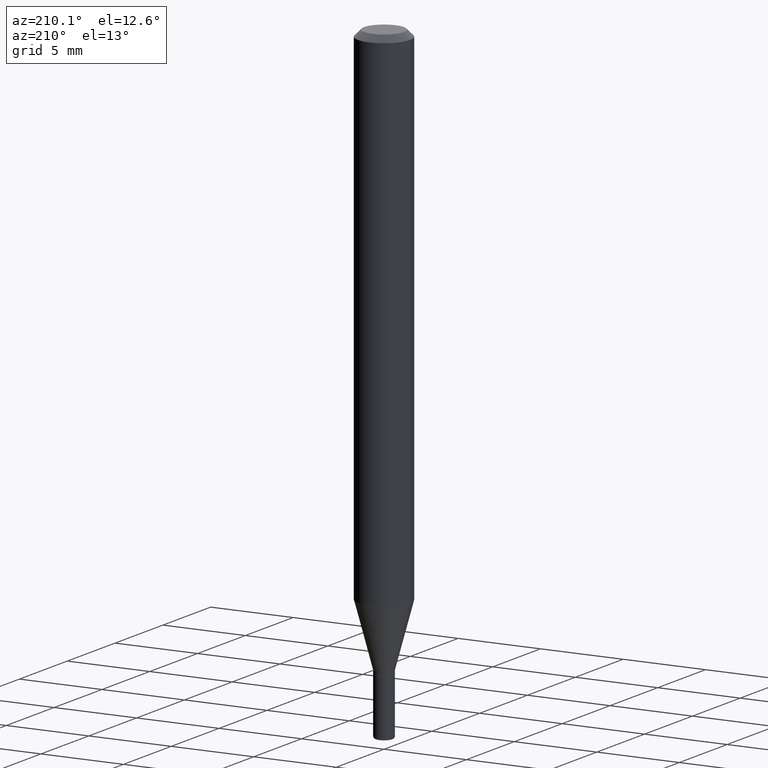
[diagram: clean part render]
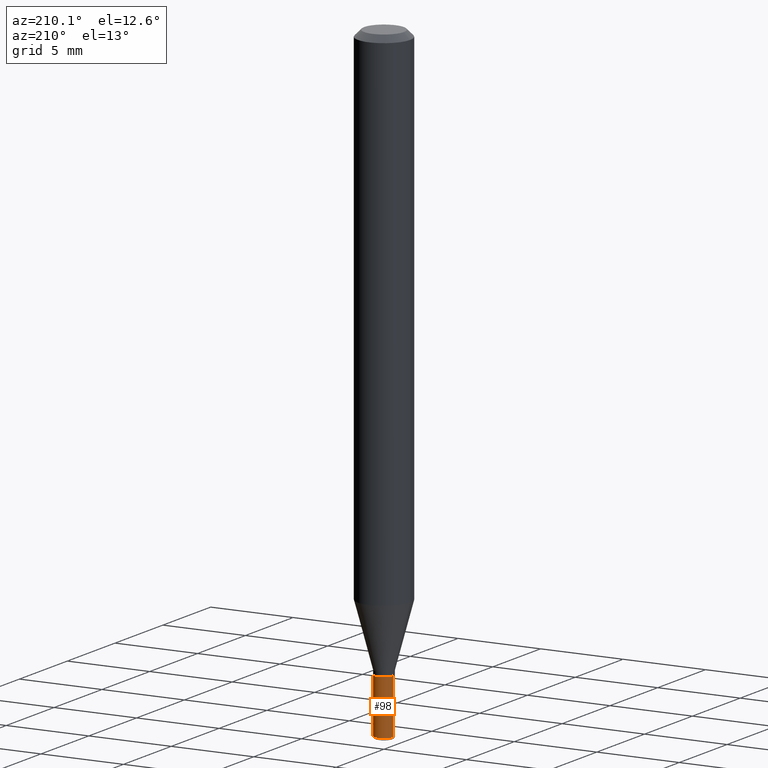
[diagram: same view with one face highlighted and labeled with its STEP entity id]
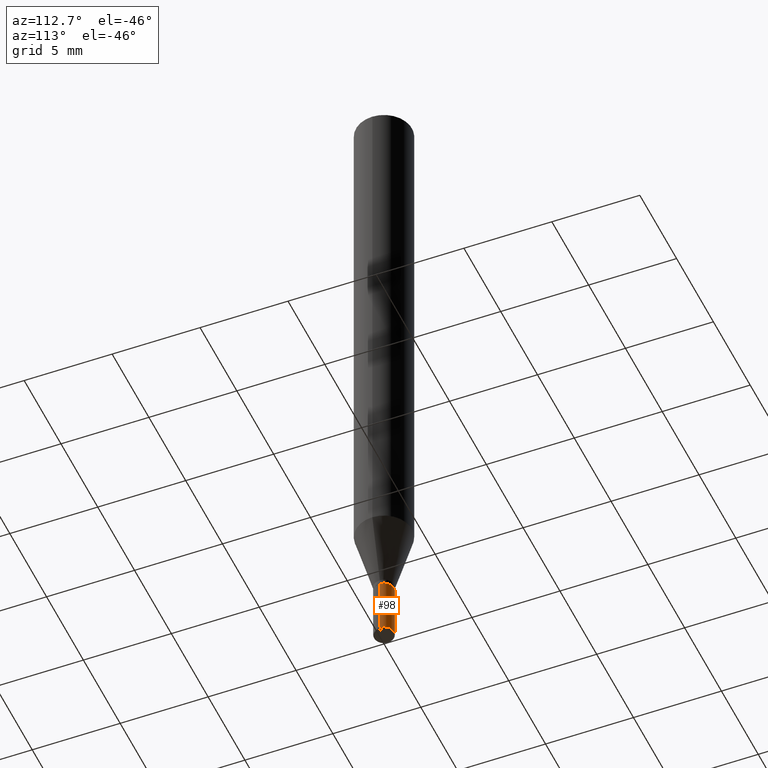
[diagram: same view with one face highlighted and labeled with its STEP entity id]
A machine part, auxiliary view. The second image highlights one B-rep face of the part: STEP entity #98.
A second angle (auxiliary view) of the same face is appended — the face is thin or edge-on in the first view.
In plain terms, the highlighted cylindrical surface (edge-blend (fillet) strip) has radius 0.5715 mm, axis along (-0, 0, 1).
Its self-contained STEP definition (entity closure, byte-faithful):
#10 = EDGE_CURVE ( 'NONE', #320, #467, #14, .T. ) ;
#14 = LINE ( 'NONE', #494, #330 ) ;
#18 = FACE_OUTER_BOUND ( 'NONE', #285, .T. ) ;
#68 = CARTESIAN_POINT ( 'NONE',  ( 3.338064920442711836E-29, -4.765872027520893280E-15, -1.364999999999999991 ) ) ;
#78 = CARTESIAN_POINT ( 'NONE',  ( 3.655975865246779683E-29, -5.219764601570503930E-15, -1.495000000000000329 ) ) ;
#81 = VERTEX_POINT ( 'NONE', #492 ) ;
#82 = CARTESIAN_POINT ( 'NONE',  ( 0.02249999999999999917, -4.922988687768834913E-15, -1.364999999999999991 ) ) ;
#98 = ADVANCED_FACE ( 'NONE', ( #18 ), #327, .T. ) ;
#115 = CIRCLE ( 'NONE', #423, 0.02250000000000017958 ) ;
#118 = EDGE_CURVE ( 'NONE', #81, #200, #505, .T. ) ;
#130 = CARTESIAN_POINT ( 'NONE',  ( 0.000000000000000000, 0.000000000000000000, 0.000000000000000000 ) ) ;
#141 = DIRECTION ( 'NONE',  ( -2.445468806185136877E-29, 3.491481338843145188E-15, 1.000000000000000000 ) ) ;
#165 = AXIS2_PLACEMENT_3D ( 'NONE', #130, #296, #454 ) ;
#173 = CIRCLE ( 'NONE', #372, 0.02249999999999999917 ) ;
#178 = DIRECTION ( 'NONE',  ( 1.000000000000000000, -6.982962677686269077E-15, 0.000000000000000000 ) ) ;
#185 = CARTESIAN_POINT ( 'NONE',  ( -0.02250000000000008937, 1.598721155460231769E-16, -1.106760395307358334E-30 ) ) ;
#193 = DIRECTION ( 'NONE',  ( 1.000000000000000000, -6.982962677686255667E-15, 0.000000000000000000 ) ) ;
#200 = VERTEX_POINT ( 'NONE', #260 ) ;
#225 = ORIENTED_EDGE ( 'NONE', *, *, #118, .T. ) ;
#260 = CARTESIAN_POINT ( 'NONE',  ( -0.02249999999999999917, -4.832946198999675921E-15, -1.364999999999999991 ) ) ;
#261 = DIRECTION ( 'NONE',  ( -2.445468806185136597E-29, 3.491481338843145583E-15, 1.000000000000000000 ) ) ;
#268 = CARTESIAN_POINT ( 'NONE',  ( 0.02250000000000017958, -5.376881261818446351E-15, -1.495000000000000329 ) ) ;
#285 = EDGE_LOOP ( 'NONE', ( #362, #225, #501, #426 ) ) ;
#286 = DIRECTION ( 'NONE',  ( -2.445468806185136877E-29, 3.491481338843145188E-15, 1.000000000000000000 ) ) ;
#287 = EDGE_CURVE ( 'NONE', #467, #200, #173, .T. ) ;
#296 = DIRECTION ( 'NONE',  ( -2.445468806185136597E-29, 3.491481338843145583E-15, 1.000000000000000000 ) ) ;
#320 = VERTEX_POINT ( 'NONE', #268 ) ;
#327 = CYLINDRICAL_SURFACE ( 'NONE', #165, 0.02250000000000008937 ) ;
#330 = VECTOR ( 'NONE', #286, 39.37007874015748143 ) ;
#362 = ORIENTED_EDGE ( 'NONE', *, *, #455, .T. ) ;
#372 = AXIS2_PLACEMENT_3D ( 'NONE', #68, #261, #178 ) ;
#390 = DIRECTION ( 'NONE',  ( -2.445468806185136597E-29, 3.491481338843145583E-15, 1.000000000000000000 ) ) ;
#423 = AXIS2_PLACEMENT_3D ( 'NONE', #78, #390, #193 ) ;
#426 = ORIENTED_EDGE ( 'NONE', *, *, #10, .F. ) ;
#454 = DIRECTION ( 'NONE',  ( 1.000000000000000000, -6.982962677686265922E-15, 4.876176775795936353E-29 ) ) ;
#455 = EDGE_CURVE ( 'NONE', #320, #81, #115, .T. ) ;
#467 = VERTEX_POINT ( 'NONE', #82 ) ;
#489 = VECTOR ( 'NONE', #141, 39.37007874015748143 ) ;
#492 = CARTESIAN_POINT ( 'NONE',  ( -0.02250000000000017958, -4.832946198999673555E-15, -1.495000000000000329 ) ) ;
#494 = CARTESIAN_POINT ( 'NONE',  ( 0.02250000000000008937, -1.571166602479416074E-16, 1.097139774554090038E-30 ) ) ;
#501 = ORIENTED_EDGE ( 'NONE', *, *, #287, .F. ) ;
#505 = LINE ( 'NONE', #185, #489 ) ;